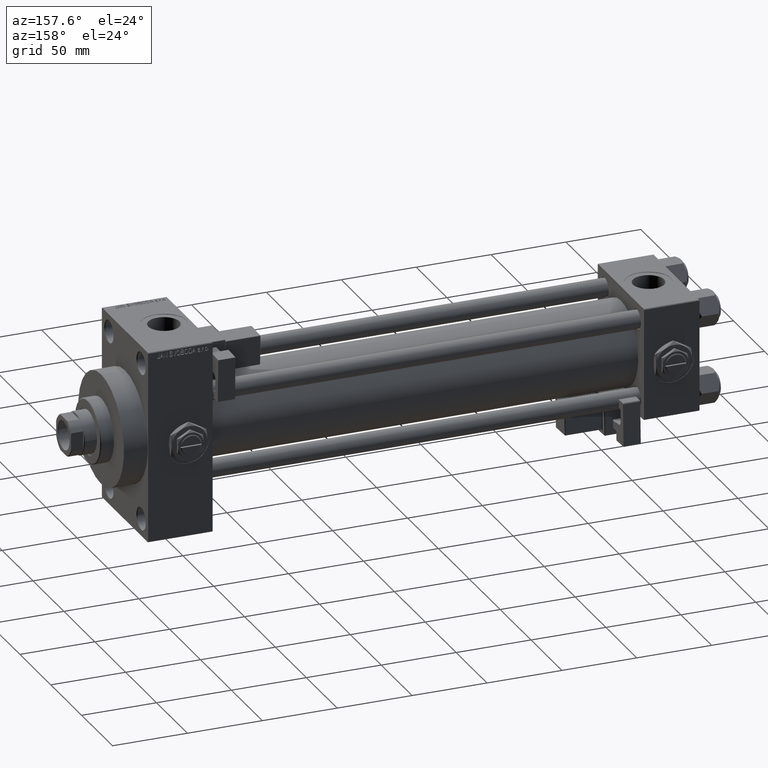
[diagram: clean part render]
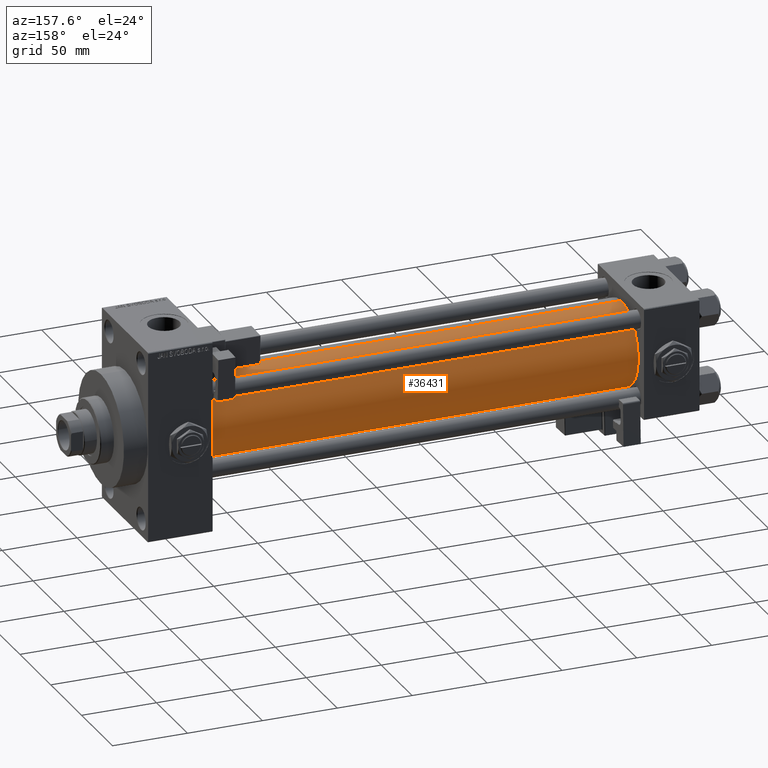
[diagram: same view with one face highlighted and labeled with its STEP entity id]
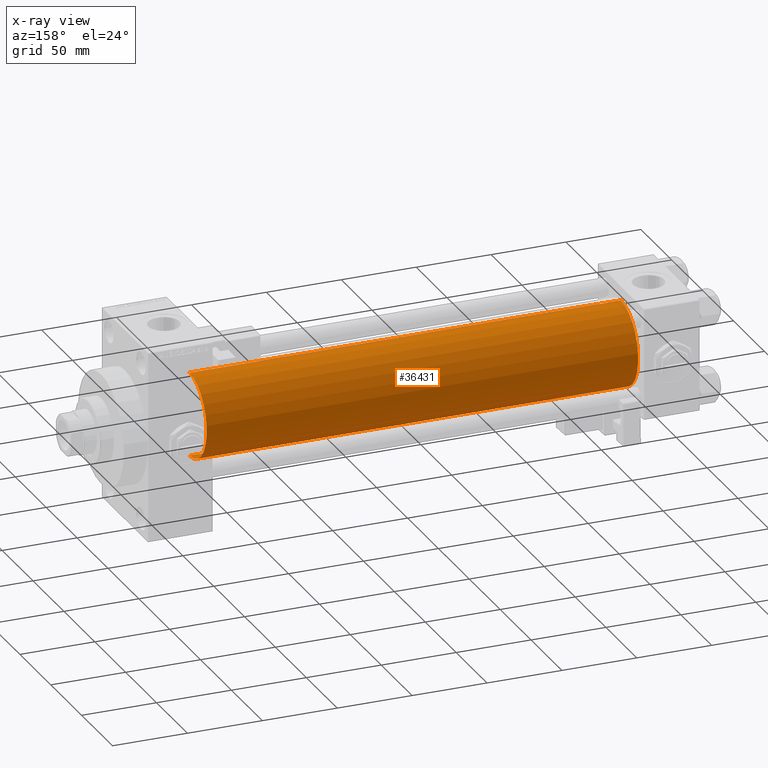
[diagram: x-ray of the same camera — body ghosted, the highlighted face saturated]
A machine part, auxiliary view. The second image highlights one B-rep face of the part: STEP entity #36431.
The next image is the same camera in x-ray: the body ghosted, the highlighted face saturated — about 0% of this face is hidden behind the body in this view.
In plain terms, the highlighted cylindrical surface (partial cylindrical patch) has radius 28 mm, axis along (-1, -0, -0).
Its self-contained STEP definition (entity closure, byte-faithful):
#952 = VECTOR ( 'NONE', #51053, 1000.000000000000000 ) ;
#1116 = ORIENTED_EDGE ( 'NONE', *, *, #23771, .T. ) ;
#1614 = ORIENTED_EDGE ( 'NONE', *, *, #26522, .F. ) ;
#1742 = FACE_OUTER_BOUND ( 'NONE', #37262, .T. ) ;
#3423 = CARTESIAN_POINT ( 'NONE',  ( 324.9999999999999432, -2.602085213965210642E-15, 28.00000000000000000 ) ) ;
#4937 = DIRECTION ( 'NONE',  ( 1.000000000000000000, -0.000000000000000000, 0.000000000000000000 ) ) ;
#7252 = CARTESIAN_POINT ( 'NONE',  ( 324.9999999999999432, 8.269258236473784371E-16, -28.00000000000000000 ) ) ;
#7334 = LINE ( 'NONE', #3423, #952 ) ;
#7506 = VECTOR ( 'NONE', #23388, 1000.000000000000000 ) ;
#9430 = EDGE_CURVE ( 'NONE', #35789, #38013, #21671, .T. ) ;
#11908 = ORIENTED_EDGE ( 'NONE', *, *, #9430, .F. ) ;
#13998 = CARTESIAN_POINT ( 'NONE',  ( 324.9999999999999432, -2.602085213965210642E-15, 0.000000000000000000 ) ) ;
#14942 = AXIS2_PLACEMENT_3D ( 'NONE', #36952, #4937, #40075 ) ;
#15205 = CARTESIAN_POINT ( 'NONE',  ( 36.99999999999997868, -2.602085213965210642E-15, 28.00000000000000000 ) ) ;
#19095 = CARTESIAN_POINT ( 'NONE',  ( 324.9999999999999432, 8.269258236473784371E-16, -28.00000000000000000 ) ) ;
#21671 = CIRCLE ( 'NONE', #30004, 28.00000000000000000 ) ;
#22861 = EDGE_CURVE ( 'NONE', #35048, #48410, #37386, .T. ) ;
#23388 = DIRECTION ( 'NONE',  ( -1.000000000000000000, -0.000000000000000000, -0.000000000000000000 ) ) ;
#23771 = EDGE_CURVE ( 'NONE', #35789, #35048, #39239, .T. ) ;
#26522 = EDGE_CURVE ( 'NONE', #38013, #48410, #7334, .T. ) ;
#26737 = DIRECTION ( 'NONE',  ( -1.000000000000000000, -0.000000000000000000, -0.000000000000000000 ) ) ;
#30004 = AXIS2_PLACEMENT_3D ( 'NONE', #44786, #45554, #36733 ) ;
#30130 = DIRECTION ( 'NONE',  ( 0.000000000000000000, 0.000000000000000000, 1.000000000000000000 ) ) ;
#33425 = ORIENTED_EDGE ( 'NONE', *, *, #22861, .T. ) ;
#35048 = VERTEX_POINT ( 'NONE', #43973 ) ;
#35789 = VERTEX_POINT ( 'NONE', #19095 ) ;
#36431 = ADVANCED_FACE ( 'NONE', ( #1742 ), #42334, .T. ) ;
#36733 = DIRECTION ( 'NONE',  ( 0.000000000000000000, 0.000000000000000000, -1.000000000000000000 ) ) ;
#36952 = CARTESIAN_POINT ( 'NONE',  ( 36.99999999999997868, -2.602085213965210642E-15, 0.000000000000000000 ) ) ;
#37262 = EDGE_LOOP ( 'NONE', ( #11908, #1116, #33425, #1614 ) ) ;
#37386 = CIRCLE ( 'NONE', #14942, 28.00000000000000000 ) ;
#38013 = VERTEX_POINT ( 'NONE', #40201 ) ;
#39239 = LINE ( 'NONE', #7252, #7506 ) ;
#40075 = DIRECTION ( 'NONE',  ( 0.000000000000000000, 0.000000000000000000, 1.000000000000000000 ) ) ;
#40201 = CARTESIAN_POINT ( 'NONE',  ( 324.9999999999999432, -2.602085213965210642E-15, 28.00000000000000000 ) ) ;
#42334 = CYLINDRICAL_SURFACE ( 'NONE', #46900, 28.00000000000000000 ) ;
#43973 = CARTESIAN_POINT ( 'NONE',  ( 36.99999999999997868, 8.269258236473784371E-16, -28.00000000000000000 ) ) ;
#44786 = CARTESIAN_POINT ( 'NONE',  ( 324.9999999999999432, -2.602085213965210642E-15, 0.000000000000000000 ) ) ;
#45554 = DIRECTION ( 'NONE',  ( 1.000000000000000000, 0.000000000000000000, 0.000000000000000000 ) ) ;
#46900 = AXIS2_PLACEMENT_3D ( 'NONE', #13998, #26737, #30130 ) ;
#48410 = VERTEX_POINT ( 'NONE', #15205 ) ;
#51053 = DIRECTION ( 'NONE',  ( -1.000000000000000000, -0.000000000000000000, -0.000000000000000000 ) ) ;